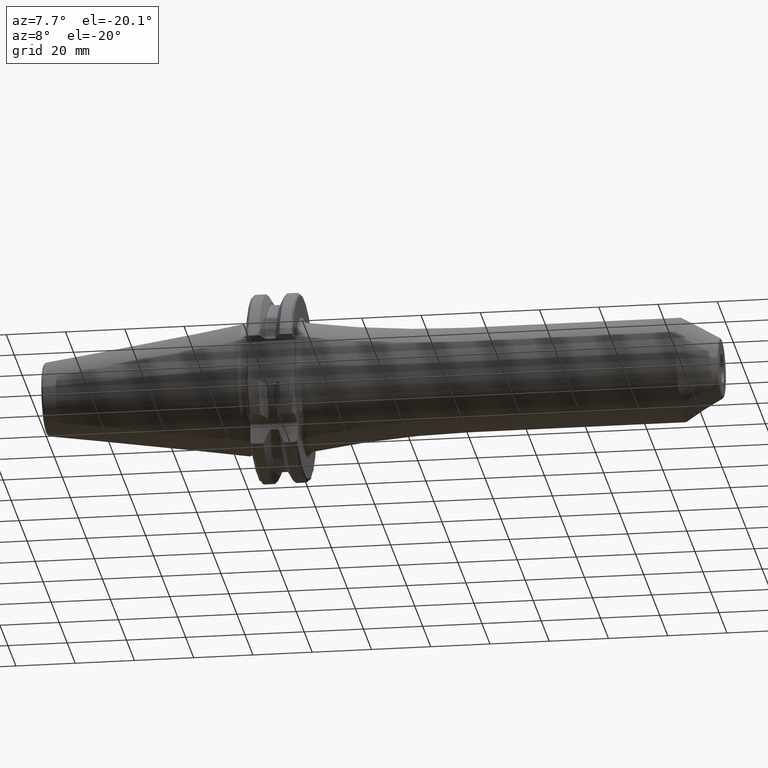
[diagram: clean part render]
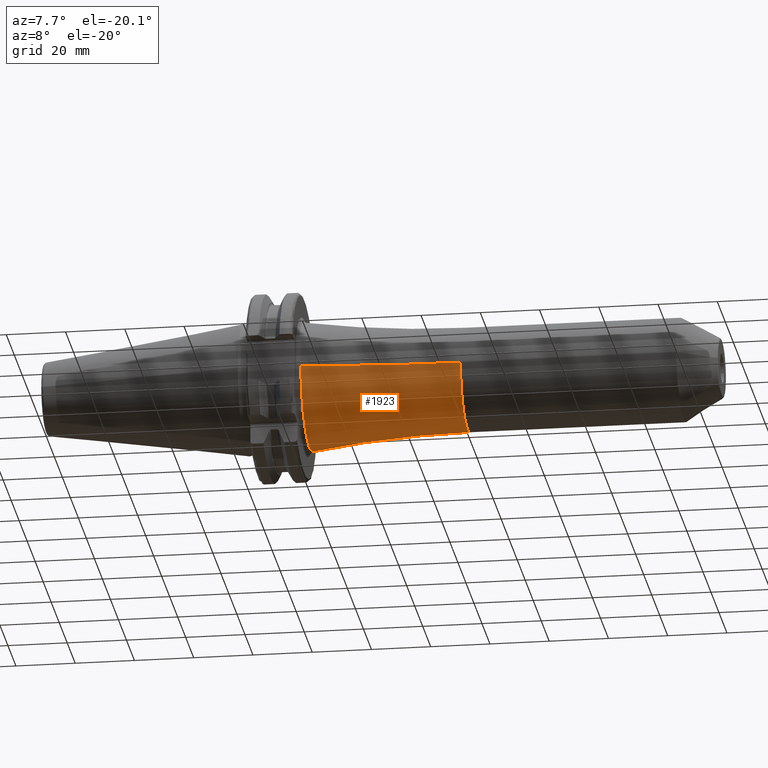
[diagram: same view with one face highlighted and labeled with its STEP entity id]
A machine part, auxiliary view. The second image highlights one B-rep face of the part: STEP entity #1923.
In plain terms, the highlighted toroidal blend (fillet) surface has major radius 367.5 mm and minor (blend) radius 350 mm.
Its self-contained STEP definition (entity closure, byte-faithful):
#205=CARTESIAN_POINT('',(2.074540229885E1,0.E0,0.E0));
#206=DIRECTION('',(1.E0,0.E0,0.E0));
#207=DIRECTION('',(0.E0,-1.E0,0.E0));
#208=AXIS2_PLACEMENT_3D('',#205,#206,#207);
#210=CARTESIAN_POINT('',(7.405E1,-3.675E2,-9.001153973733E-14));
#211=DIRECTION('',(0.E0,0.E0,1.E0));
#212=DIRECTION('',(0.E0,1.E0,0.E0));
#213=AXIS2_PLACEMENT_3D('',#210,#211,#212);
#215=CARTESIAN_POINT('',(7.405E1,3.675E2,4.500576986867E-14));
#216=DIRECTION('',(0.E0,0.E0,-1.E0));
#217=DIRECTION('',(0.E0,-1.E0,0.E0));
#218=AXIS2_PLACEMENT_3D('',#215,#216,#217);
#220=CARTESIAN_POINT('',(7.405E1,0.E0,0.E0));
#221=DIRECTION('',(1.E0,0.E0,0.E0));
#222=DIRECTION('',(0.E0,-1.E0,0.E0));
#223=AXIS2_PLACEMENT_3D('',#220,#221,#222);
#1644=CARTESIAN_POINT('',(2.074540229885E1,2.158292919228E1,
-8.752482825352E-4));
#1645=VERTEX_POINT('',#1644);
#1646=CARTESIAN_POINT('',(7.405E1,1.75E1,0.E0));
#1647=CARTESIAN_POINT('',(7.405E1,-1.75E1,0.E0));
#1648=VERTEX_POINT('',#1646);
#1649=VERTEX_POINT('',#1647);
#1652=CARTESIAN_POINT('',(2.074540229885E1,-2.158292921002E1,0.E0));
#1653=VERTEX_POINT('',#1652);
#1911=CARTESIAN_POINT('',(7.405E1,0.E0,0.E0));
#1912=DIRECTION('',(1.E0,0.E0,0.E0));
#1913=DIRECTION('',(0.E0,-1.E0,0.E0));
#1914=AXIS2_PLACEMENT_3D('',#1911,#1912,#1913);
#1915=TOROIDAL_SURFACE('',#1914,3.675E2,3.5E2);
#1916=ORIENTED_EDGE('',*,*,#1875,.F.);
#1917=ORIENTED_EDGE('',*,*,#1906,.F.);
#1919=ORIENTED_EDGE('',*,*,#1918,.T.);
#1920=ORIENTED_EDGE('',*,*,#1902,.T.);
#1921=EDGE_LOOP('',(#1916,#1917,#1919,#1920));
#1922=FACE_OUTER_BOUND('',#1921,.F.);
#1923=ADVANCED_FACE('',(#1922),#1915,.F.);
#209=CIRCLE('',#208,2.158292921002E1);
#214=CIRCLE('',#213,3.5E2);
#219=CIRCLE('',#218,3.5E2);
#224=CIRCLE('',#223,1.75E1);
#1875=EDGE_CURVE('',#1653,#1645,#209,.T.);
#1902=EDGE_CURVE('',#1648,#1645,#219,.T.);
#1906=EDGE_CURVE('',#1649,#1653,#214,.T.);
#1918=EDGE_CURVE('',#1649,#1648,#224,.T.);